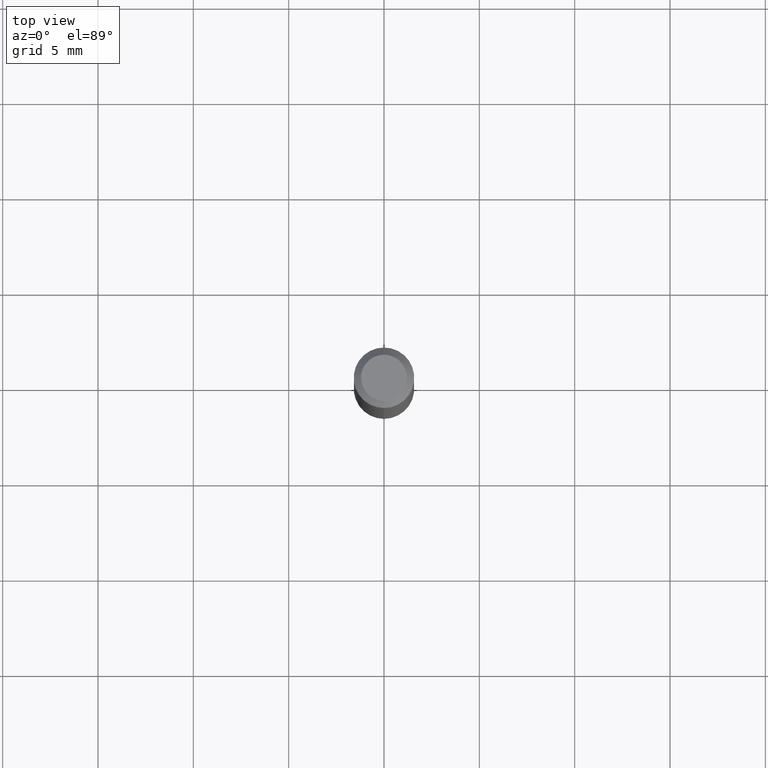
[diagram: clean part render]
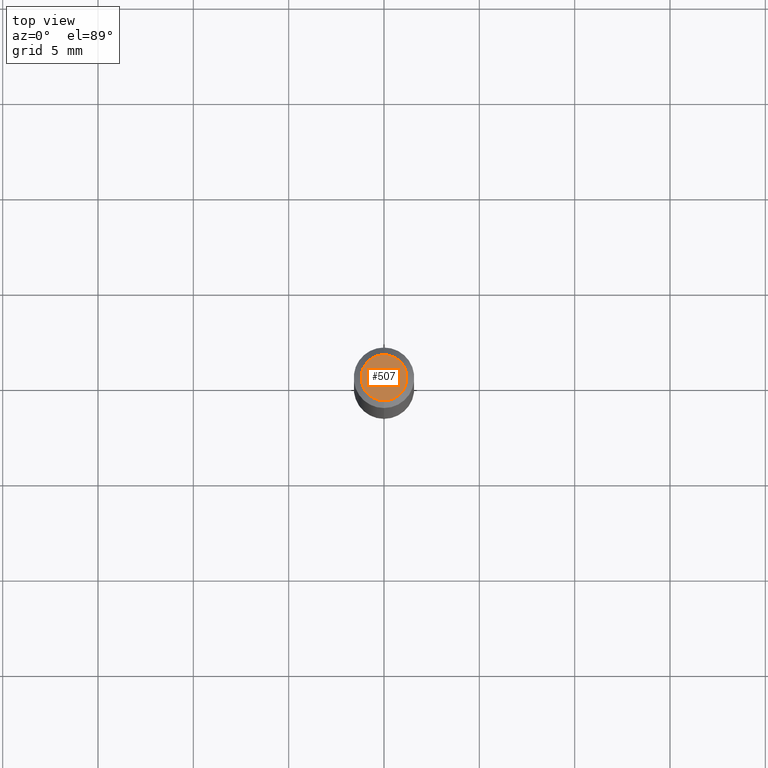
[diagram: same view with one face highlighted and labeled with its STEP entity id]
A machine part, top view. The second image highlights one B-rep face of the part: STEP entity #507.
In plain terms, the highlighted planar face has unit normal (0, -0, -1).
Its self-contained STEP definition (entity closure, byte-faithful):
#3 = CARTESIAN_POINT ( 'NONE',  ( 2.167168248901613066E-46, -3.094083357917074429E-32, -8.861890908421441396E-18 ) ) ;
#32 = CARTESIAN_POINT ( 'NONE',  ( 2.167168248901613066E-46, -3.094083357917074429E-32, -8.861890908421441396E-18 ) ) ;
#42 = DIRECTION ( 'NONE',  ( -6.982962677686266711E-15, -1.000000000000000000, 3.491448258493875484E-15 ) ) ;
#102 = CARTESIAN_POINT ( 'NONE',  ( 3.316907271900976096E-16, 0.04749999999999999362, -1.702747377326697798E-16 ) ) ;
#118 = ORIENTED_EDGE ( 'NONE', *, *, #261, .T. ) ;
#119 = EDGE_CURVE ( 'NONE', #371, #197, #492, .T. ) ;
#122 = AXIS2_PLACEMENT_3D ( 'NONE', #3, #350, #42 ) ;
#141 = PLANE ( 'NONE',  #161 ) ;
#161 = AXIS2_PLACEMENT_3D ( 'NONE', #102, #245, #353 ) ;
#197 = VERTEX_POINT ( 'NONE', #339 ) ;
#232 = FACE_OUTER_BOUND ( 'NONE', #305, .T. ) ;
#236 = CARTESIAN_POINT ( 'NONE',  ( -3.773273898774340269E-16, -0.04749999999999999362, 1.569819013700376278E-16 ) ) ;
#245 = DIRECTION ( 'NONE',  ( 2.445491906069567934E-29, -3.491448258493875484E-15, -1.000000000000000000 ) ) ;
#261 = EDGE_CURVE ( 'NONE', #197, #371, #304, .T. ) ;
#266 = ORIENTED_EDGE ( 'NONE', *, *, #119, .T. ) ;
#304 = CIRCLE ( 'NONE', #122, 0.04749999999999999362 ) ;
#305 = EDGE_LOOP ( 'NONE', ( #118, #266 ) ) ;
#339 = CARTESIAN_POINT ( 'NONE',  ( 3.840629472727447874E-16, 0.04749999999999999362, -1.747056831868805136E-16 ) ) ;
#350 = DIRECTION ( 'NONE',  ( -2.445491906069568494E-29, 3.491448258493875090E-15, 1.000000000000000000 ) ) ;
#353 = DIRECTION ( 'NONE',  ( 6.982962677686265922E-15, 1.000000000000000000, -3.491448258493875484E-15 ) ) ;
#371 = VERTEX_POINT ( 'NONE', #236 ) ;
#373 = DIRECTION ( 'NONE',  ( -6.982962677686266711E-15, -1.000000000000000000, 3.491448258493875484E-15 ) ) ;
#492 = CIRCLE ( 'NONE', #501, 0.04749999999999999362 ) ;
#501 = AXIS2_PLACEMENT_3D ( 'NONE', #32, #505, #373 ) ;
#505 = DIRECTION ( 'NONE',  ( -2.445491906069568494E-29, 3.491448258493875090E-15, 1.000000000000000000 ) ) ;
#507 = ADVANCED_FACE ( 'NONE', ( #232 ), #141, .F. ) ;